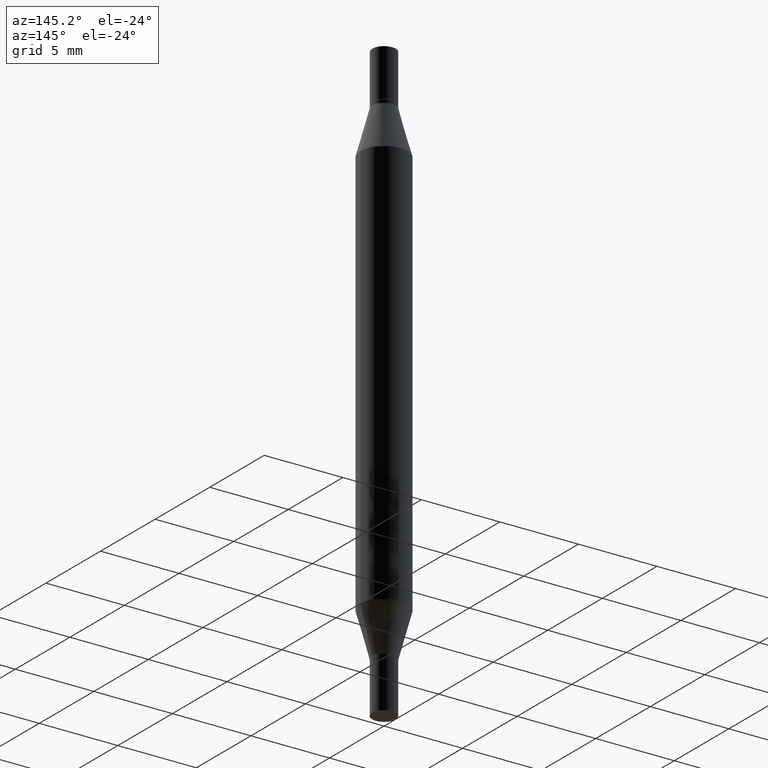
[diagram: clean part render]
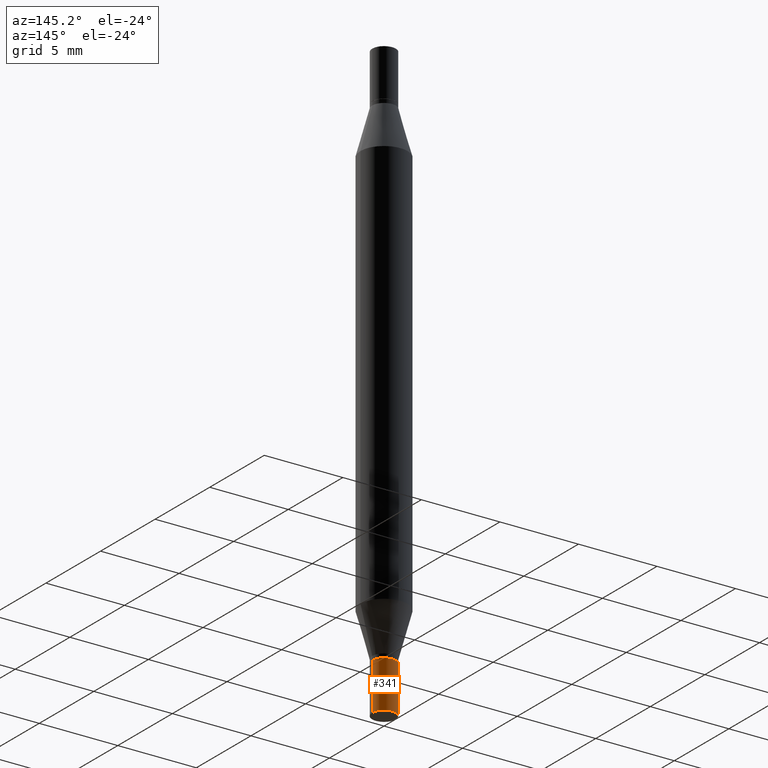
[diagram: same view with one face highlighted and labeled with its STEP entity id]
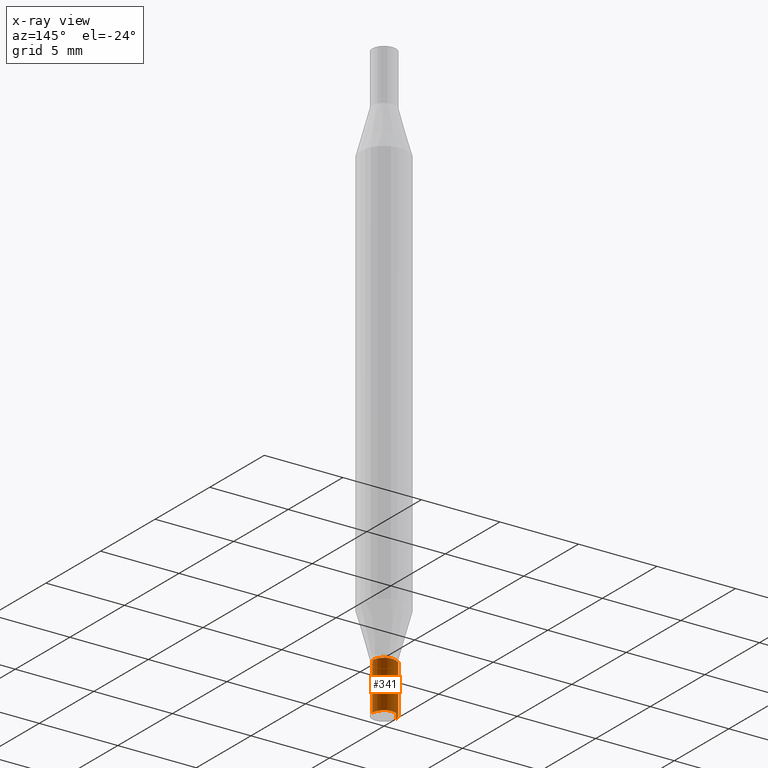
[diagram: x-ray of the same camera — body ghosted, the highlighted face saturated]
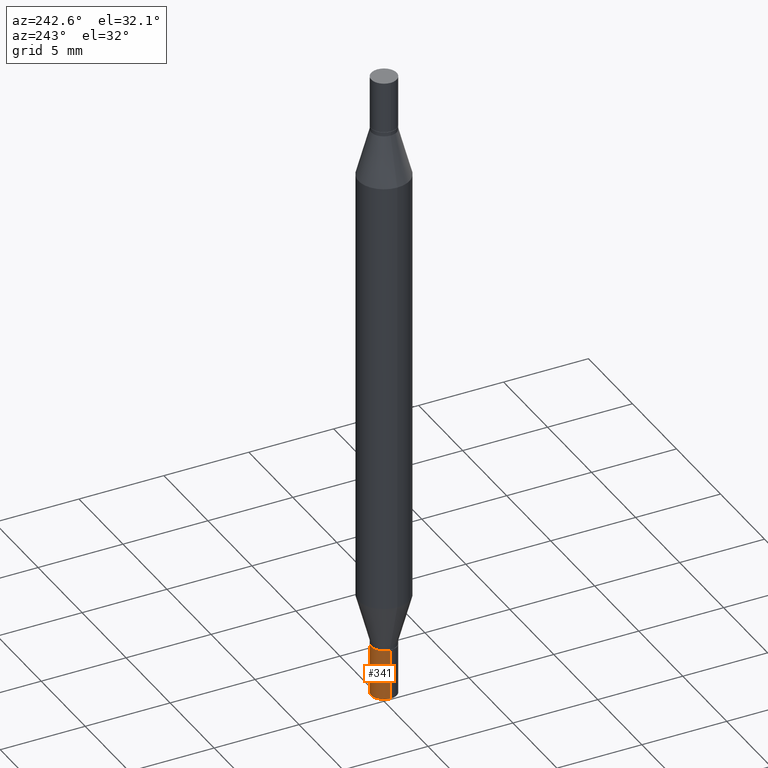
[diagram: same view with one face highlighted and labeled with its STEP entity id]
A machine part, auxiliary view. The second image highlights one B-rep face of the part: STEP entity #341.
The next image is the same camera in x-ray: the body ghosted, the highlighted face saturated — about 0% of this face is hidden behind the body in this view.
A second angle (auxiliary view) of the same face is appended — the face is thin or edge-on in the first view.
In plain terms, the highlighted cylindrical surface (edge-blend (fillet) strip) has radius 0.7506 mm, axis along (-0, 0, 1).
Its self-contained STEP definition (entity closure, byte-faithful):
#19 = CARTESIAN_POINT ( 'NONE',  ( 0.000000000000000000, 0.000000000000000000, 0.000000000000000000 ) ) ;
#35 = CARTESIAN_POINT ( 'NONE',  ( 3.369856014923117948E-29, -4.811261284925853951E-15, -1.377999999999999892 ) ) ;
#53 = VECTOR ( 'NONE', #231, 39.37007874015748143 ) ;
#123 = CARTESIAN_POINT ( 'NONE',  ( 0.02954999999999999988, -5.429951778168858482E-15, -1.496099999999999985 ) ) ;
#151 = LINE ( 'NONE', #745, #53 ) ;
#153 = EDGE_CURVE ( 'NONE', #376, #328, #794, .T. ) ;
#163 = CARTESIAN_POINT ( 'NONE',  ( -0.02954999999999999988, -4.807467879567433237E-15, -1.496099999999999985 ) ) ;
#231 = DIRECTION ( 'NONE',  ( -2.445468806185136877E-29, 3.491481338843145188E-15, 1.000000000000000000 ) ) ;
#248 = ORIENTED_EDGE ( 'NONE', *, *, #153, .F. ) ;
#252 = DIRECTION ( 'NONE',  ( 1.000000000000000000, -6.982962677686266711E-15, 4.876176775795935793E-29 ) ) ;
#258 = CARTESIAN_POINT ( 'NONE',  ( 3.658665880933582389E-29, -5.223605231043229660E-15, -1.496099999999999985 ) ) ;
#269 = DIRECTION ( 'NONE',  ( -2.445468806185136597E-29, 3.491481338843145583E-15, 1.000000000000000000 ) ) ;
#291 = VERTEX_POINT ( 'NONE', #163 ) ;
#324 = VERTEX_POINT ( 'NONE', #536 ) ;
#328 = VERTEX_POINT ( 'NONE', #914 ) ;
#341 = ADVANCED_FACE ( 'NONE', ( #690 ), #459, .T. ) ;
#342 = DIRECTION ( 'NONE',  ( 1.000000000000000000, -6.982962677686261977E-15, 0.000000000000000000 ) ) ;
#358 = EDGE_CURVE ( 'NONE', #291, #324, #151, .T. ) ;
#376 = VERTEX_POINT ( 'NONE', #123 ) ;
#443 = ORIENTED_EDGE ( 'NONE', *, *, #358, .T. ) ;
#448 = ORIENTED_EDGE ( 'NONE', *, *, #516, .F. ) ;
#459 = CYLINDRICAL_SURFACE ( 'NONE', #637, 0.02954999999999999988 ) ;
#496 = VECTOR ( 'NONE', #512, 39.37007874015748143 ) ;
#512 = DIRECTION ( 'NONE',  ( -2.445468806185136877E-29, 3.491481338843145188E-15, 1.000000000000000000 ) ) ;
#516 = EDGE_CURVE ( 'NONE', #328, #324, #559, .T. ) ;
#524 = AXIS2_PLACEMENT_3D ( 'NONE', #35, #855, #342 ) ;
#536 = CARTESIAN_POINT ( 'NONE',  ( -0.02954999999999999988, -4.807467879567433237E-15, -1.377999999999999892 ) ) ;
#559 = CIRCLE ( 'NONE', #524, 0.02954999999999999988 ) ;
#562 = DIRECTION ( 'NONE',  ( 1.000000000000000000, -6.982962677686261977E-15, 0.000000000000000000 ) ) ;
#625 = CIRCLE ( 'NONE', #875, 0.02954999999999999988 ) ;
#637 = AXIS2_PLACEMENT_3D ( 'NONE', #19, #918, #252 ) ;
#668 = EDGE_LOOP ( 'NONE', ( #741, #443, #448, #248 ) ) ;
#690 = FACE_OUTER_BOUND ( 'NONE', #668, .T. ) ;
#741 = ORIENTED_EDGE ( 'NONE', *, *, #845, .T. ) ;
#745 = CARTESIAN_POINT ( 'NONE',  ( -0.02954999999999999988, 2.099653784171096041E-16, -1.453545319170324550E-30 ) ) ;
#794 = LINE ( 'NONE', #968, #496 ) ;
#845 = EDGE_CURVE ( 'NONE', #376, #291, #625, .T. ) ;
#855 = DIRECTION ( 'NONE',  ( -2.445468806185136597E-29, 3.491481338843145583E-15, 1.000000000000000000 ) ) ;
#875 = AXIS2_PLACEMENT_3D ( 'NONE', #258, #269, #562 ) ;
#914 = CARTESIAN_POINT ( 'NONE',  ( 0.02954999999999999988, -5.017607832051483561E-15, -1.377999999999999892 ) ) ;
#918 = DIRECTION ( 'NONE',  ( -2.445468806185136597E-29, 3.491481338843145583E-15, 1.000000000000000000 ) ) ;
#968 = CARTESIAN_POINT ( 'NONE',  ( 0.02954999999999999988, -2.063465471256291914E-16, 1.440910237247699070E-30 ) ) ;